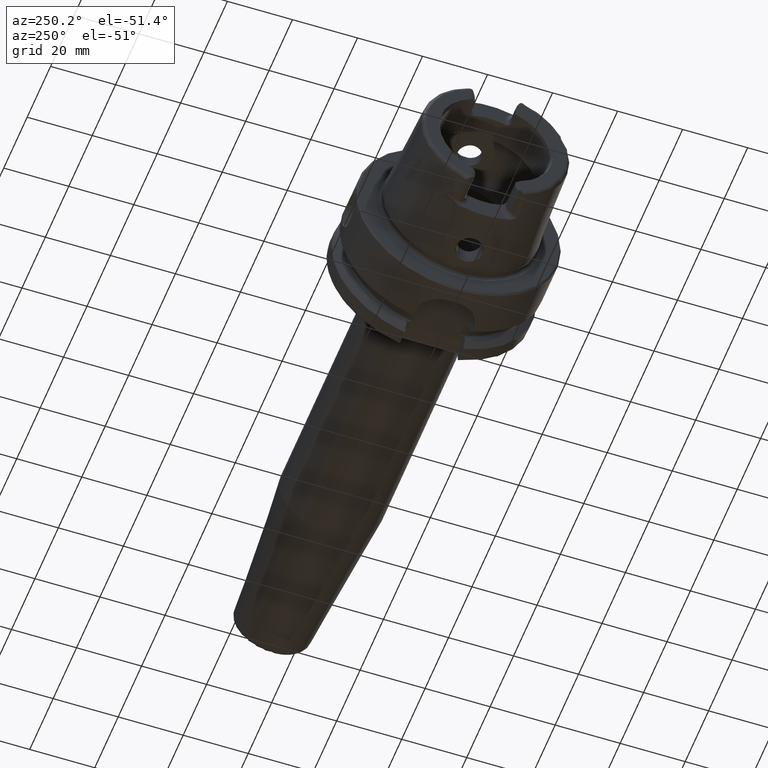
[diagram: clean part render]
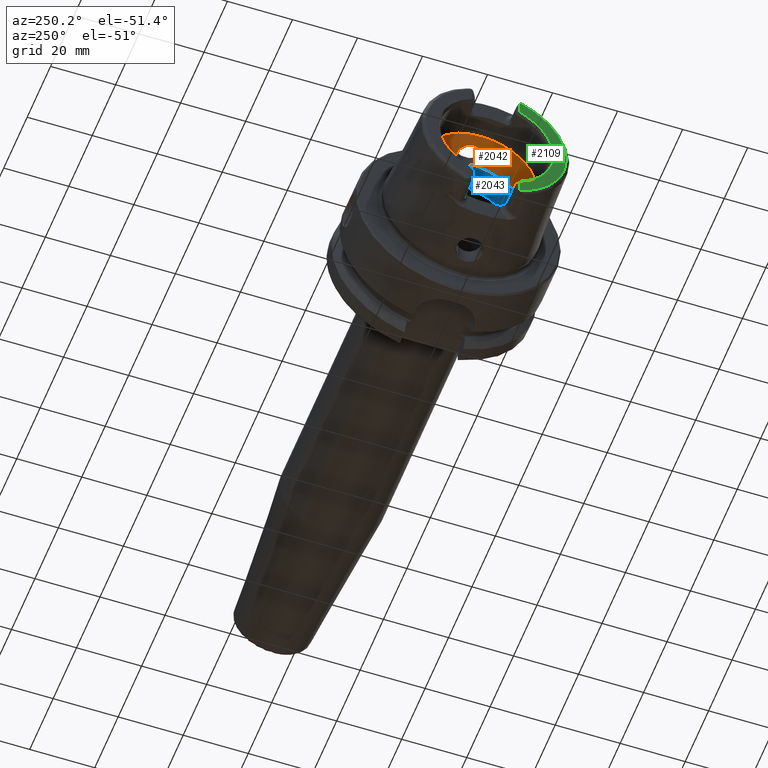
[diagram: same view with three faces highlighted in distinct colors, each labeled with its STEP entity id]
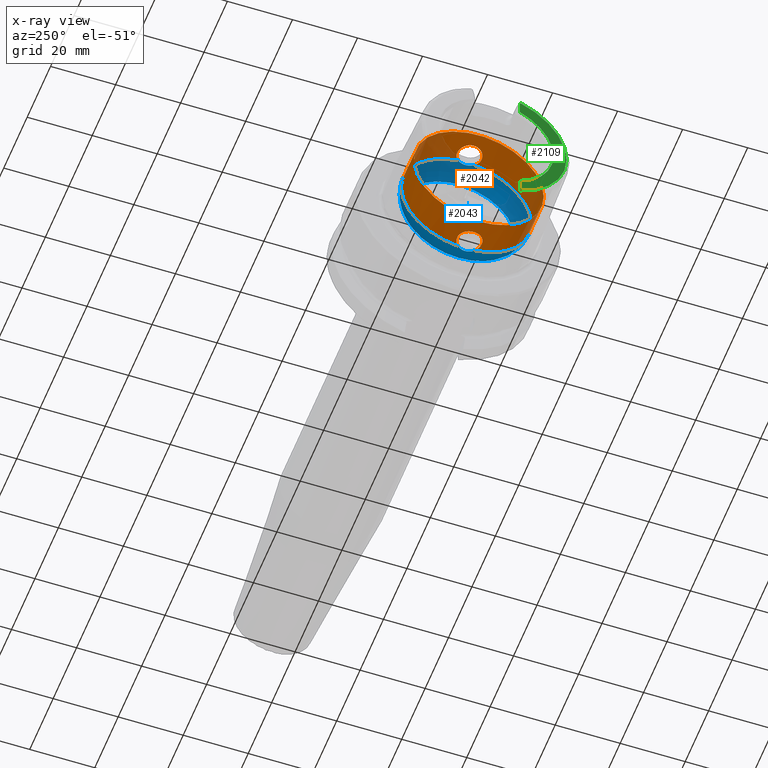
[diagram: x-ray of the same camera — body ghosted, the three highlighted faces saturated]
A machine part, auxiliary view with three faces highlighted in distinct colors.
The next image is the same camera in x-ray (body ghosted, the three faces saturated) — at least one of them is partly hidden behind the body in this view.
Their STEP definitions:

[orange] entity #2042 — the highlighted cylindrical surface (bore or boss wall) has radius 20 mm, axis along (-1, 0, 0).
#50=B_SPLINE_CURVE_WITH_KNOTS('',3,(#3613,#3614,#3615,#3616,#3617,#3618,
#3619,#3620,#3621,#3622,#3623,#3624,#3625,#3626,#3627,#3628,#3629,#3630,
#3631,#3632,#3633,#3634,#3635,#3636,#3637,#3638,#3639,#3640,#3641,#3642,
#3643),.UNSPECIFIED.,.F.,.F.,(4,2,2,2,2,2,2,2,2,2,2,3,2,2,4),(-1.43107314142755,
-1.4161913421645,-1.27456976724955,-1.1329481923346,-0.991326617419658,
-0.849705042504712,-0.708089569336007,-0.566474096167302,-0.424858622998598,
-0.283243149829893,-0.141621574914946,0.,0.141621574914946,0.283243149829893,
0.298124949100151),.UNSPECIFIED.);
#55=B_SPLINE_CURVE_WITH_KNOTS('',3,(#3782,#3783,#3784,#3785,#3786,#3787,
#3788,#3789,#3790,#3791,#3792,#3793,#3794,#3795,#3796,#3797,#3798,#3799,
#3800,#3801,#3802,#3803,#3804,#3805,#3806,#3807,#3808,#3809,#3810,#3811,
#3812),.UNSPECIFIED.,.F.,.F.,(4,2,2,3,2,2,2,2,2,2,2,2,2,2,4),(-0.298124949092949,
-0.283243149829893,-0.141621574914946,0.,0.141621574914946,0.283243149829893,
0.424858622998598,0.566474096167302,0.708089569336007,0.849705042504712,
0.991326617419658,1.1329481923346,1.27456976724955,1.4161913421645,1.43107314143475),
 .UNSPECIFIED.);
#191=CYLINDRICAL_SURFACE('',#2236,20.);
#249=FACE_OUTER_BOUND('',#378,.T.);
#378=EDGE_LOOP('',(#1536,#1537,#1538,#1539,#1540,#1541,#1542,#1543,#1544));
#515=LINE('',#3828,#625);
#625=VECTOR('',#2631,20.);
#731=CIRCLE('',#2237,20.);
#732=CIRCLE('',#2238,20.);
#733=CIRCLE('',#2239,20.);
#734=CIRCLE('',#2240,20.);
#735=CIRCLE('',#2241,20.);
#908=VERTEX_POINT('',#3599);
#909=VERTEX_POINT('',#3612);
#912=VERTEX_POINT('',#3767);
#914=VERTEX_POINT('',#3781);
#915=VERTEX_POINT('',#3825);
#916=VERTEX_POINT('',#3827);
#917=VERTEX_POINT('',#3829);
#1144=EDGE_CURVE('',#909,#908,#50,.T.);
#1150=EDGE_CURVE('',#914,#912,#55,.T.);
#1153=EDGE_CURVE('',#915,#912,#731,.T.);
#1154=EDGE_CURVE('',#915,#916,#515,.T.);
#1155=EDGE_CURVE('',#916,#917,#732,.T.);
#1156=EDGE_CURVE('',#917,#916,#733,.T.);
#1157=EDGE_CURVE('',#909,#915,#734,.T.);
#1158=EDGE_CURVE('',#914,#908,#735,.T.);
#1536=ORIENTED_EDGE('',*,*,#1150,.T.);
#1537=ORIENTED_EDGE('',*,*,#1153,.F.);
#1538=ORIENTED_EDGE('',*,*,#1154,.T.);
#1539=ORIENTED_EDGE('',*,*,#1155,.T.);
#1540=ORIENTED_EDGE('',*,*,#1156,.T.);
#1541=ORIENTED_EDGE('',*,*,#1154,.F.);
#1542=ORIENTED_EDGE('',*,*,#1157,.F.);
#1543=ORIENTED_EDGE('',*,*,#1144,.T.);
#1544=ORIENTED_EDGE('',*,*,#1158,.F.);
#2042=ADVANCED_FACE('',(#249),#191,.F.);
#2236=AXIS2_PLACEMENT_3D('',#3824,#2627,#2628);
#2237=AXIS2_PLACEMENT_3D('',#3826,#2629,#2630);
#2238=AXIS2_PLACEMENT_3D('',#3830,#2632,#2633);
#2239=AXIS2_PLACEMENT_3D('',#3831,#2634,#2635);
#2240=AXIS2_PLACEMENT_3D('',#3832,#2636,#2637);
#2241=AXIS2_PLACEMENT_3D('',#3833,#2638,#2639);
#2627=DIRECTION('center_axis',(-1.,0.,0.));
#2628=DIRECTION('ref_axis',(0.,1.,0.));
#2629=DIRECTION('center_axis',(-1.,0.,0.));
#2630=DIRECTION('ref_axis',(0.,0.,1.));
#2631=DIRECTION('',(-1.,0.,0.));
#2632=DIRECTION('center_axis',(-1.,0.,0.));
#2633=DIRECTION('ref_axis',(0.,0.,1.));
#2634=DIRECTION('center_axis',(-1.,0.,0.));
#2635=DIRECTION('ref_axis',(0.,0.,1.));
#2636=DIRECTION('center_axis',(-1.,0.,0.));
#2637=DIRECTION('ref_axis',(0.,0.,1.));
#2638=DIRECTION('center_axis',(-1.,0.,0.));
#2639=DIRECTION('ref_axis',(0.,0.,1.));
#3599=CARTESIAN_POINT('',(-6.2449979983984,2.54410376580264,-19.8375284758165));
#3612=CARTESIAN_POINT('',(-6.2449979983984,-2.54410376580264,-19.8375284758165));
#3613=CARTESIAN_POINT('Ctrl Pts',(-6.2449979983984,-2.54410376580264,-19.8375284758165));
#3614=CARTESIAN_POINT('Ctrl Pts',(-6.27894943420456,-2.58086966932454,-19.8328133585216));
#3615=CARTESIAN_POINT('Ctrl Pts',(-6.31342869219743,-2.61672955109653,-19.8281105439642));
#3616=CARTESIAN_POINT('Ctrl Pts',(-6.68067160381732,-2.98397246271642,-19.7789868876592));
#3617=CARTESIAN_POINT('Ctrl Pts',(-7.10159661632629,-3.27238367725626,-19.731429741537));
#3618=CARTESIAN_POINT('Ctrl Pts',(-8.0251754070192,-3.65542701546408,-19.6640704965084));
#3619=CARTESIAN_POINT('Ctrl Pts',(-8.52792808361685,-3.75,-19.6452920568771));
#3620=CARTESIAN_POINT('Ctrl Pts',(-9.47207191638316,-3.75,-19.6452920568771));
#3621=CARTESIAN_POINT('Ctrl Pts',(-9.97482459298081,-3.65542701546408,-19.6640704965084));
#3622=CARTESIAN_POINT('Ctrl Pts',(-10.8984033836737,-3.27238367725626,-19.731429741537));
#3623=CARTESIAN_POINT('Ctrl Pts',(-11.3193283961827,-2.98397246271642,-19.7789868876592));
#3624=CARTESIAN_POINT('Ctrl Pts',(-11.9839581446669,-2.31934271423217,-19.8678900149943));
#3625=CARTESIAN_POINT('Ctrl Pts',(-12.2723805817074,-1.89841159537053,-19.9150796801946));
#3626=CARTESIAN_POINT('Ctrl Pts',(-12.6554320620407,-0.974811677040414,
-19.9815942165963));
#3627=CARTESIAN_POINT('Ctrl Pts',(-12.75,-0.472051577229017,-20.));
#3628=CARTESIAN_POINT('Ctrl Pts',(-12.75,0.472051577229015,-20.));
#3629=CARTESIAN_POINT('Ctrl Pts',(-12.6554320620407,0.974811677040408,-19.9815942165963));
#3630=CARTESIAN_POINT('Ctrl Pts',(-12.2723805817074,1.89841159537052,-19.9150796801946));
#3631=CARTESIAN_POINT('Ctrl Pts',(-11.9839581446669,2.31934271423217,-19.8678900149943));
#3632=CARTESIAN_POINT('Ctrl Pts',(-11.3193283961827,2.98397246271642,-19.7789868876592));
#3633=CARTESIAN_POINT('Ctrl Pts',(-10.8984033836737,3.27238367725626,-19.731429741537));
#3634=CARTESIAN_POINT('Ctrl Pts',(-9.97482459298081,3.65542701546408,-19.6640704965084));
#3635=CARTESIAN_POINT('Ctrl Pts',(-9.47207191638316,3.75,-19.6452920568771));
#3636=CARTESIAN_POINT('Ctrl Pts',(-9.,3.75,-19.6452920568771));
#3637=CARTESIAN_POINT('Ctrl Pts',(-8.52792808361685,3.75,-19.6452920568771));
#3638=CARTESIAN_POINT('Ctrl Pts',(-8.0251754070192,3.65542701546408,-19.6640704965084));
#3639=CARTESIAN_POINT('Ctrl Pts',(-7.10159661632629,3.27238367725626,-19.731429741537));
#3640=CARTESIAN_POINT('Ctrl Pts',(-6.68067160381732,2.98397246271642,-19.7789868876592));
#3641=CARTESIAN_POINT('Ctrl Pts',(-6.31342869218053,2.61672955107963,-19.8281105439665));
#3642=CARTESIAN_POINT('Ctrl Pts',(-6.27894943419011,2.5808696693089,-19.8328133585236));
#3643=CARTESIAN_POINT('Ctrl Pts',(-6.2449979983984,2.54410376580264,-19.8375284758165));
#3767=CARTESIAN_POINT('',(-6.2449979983984,-2.54410376580264,19.8375284758165));
#3781=CARTESIAN_POINT('',(-6.2449979983984,2.54410376580264,19.8375284758165));
#3782=CARTESIAN_POINT('Ctrl Pts',(-6.2449979983984,2.54410376580264,19.8375284758165));
#3783=CARTESIAN_POINT('Ctrl Pts',(-6.27894943420456,2.58086966932454,19.8328133585216));
#3784=CARTESIAN_POINT('Ctrl Pts',(-6.31342869219742,2.61672955109653,19.8281105439642));
#3785=CARTESIAN_POINT('Ctrl Pts',(-6.68067160381731,2.98397246271642,19.7789868876592));
#3786=CARTESIAN_POINT('Ctrl Pts',(-7.10159661632629,3.27238367725626,19.731429741537));
#3787=CARTESIAN_POINT('Ctrl Pts',(-8.02517540701919,3.65542701546408,19.6640704965084));
#3788=CARTESIAN_POINT('Ctrl Pts',(-8.52792808361684,3.75,19.6452920568771));
#3789=CARTESIAN_POINT('Ctrl Pts',(-9.,3.75,19.6452920568771));
#3790=CARTESIAN_POINT('Ctrl Pts',(-9.47207191638315,3.75,19.6452920568771));
#3791=CARTESIAN_POINT('Ctrl Pts',(-9.97482459298081,3.65542701546408,19.6640704965084));
#3792=CARTESIAN_POINT('Ctrl Pts',(-10.8984033836737,3.27238367725626,19.731429741537));
#3793=CARTESIAN_POINT('Ctrl Pts',(-11.3193283961827,2.98397246271642,19.7789868876592));
#3794=CARTESIAN_POINT('Ctrl Pts',(-11.9839581446669,2.31934271423217,19.8678900149943));
#3795=CARTESIAN_POINT('Ctrl Pts',(-12.2723805817074,1.89841159537052,19.9150796801946));
#3796=CARTESIAN_POINT('Ctrl Pts',(-12.6554320620407,0.97481167704041,19.9815942165963));
#3797=CARTESIAN_POINT('Ctrl Pts',(-12.75,0.472051577229015,20.));
#3798=CARTESIAN_POINT('Ctrl Pts',(-12.75,-0.472051577229017,20.));
#3799=CARTESIAN_POINT('Ctrl Pts',(-12.6554320620407,-0.974811677040414,
19.9815942165963));
#3800=CARTESIAN_POINT('Ctrl Pts',(-12.2723805817074,-1.89841159537053,19.9150796801946));
#3801=CARTESIAN_POINT('Ctrl Pts',(-11.9839581446669,-2.31934271423217,19.8678900149943));
#3802=CARTESIAN_POINT('Ctrl Pts',(-11.3193283961827,-2.98397246271642,19.7789868876592));
#3803=CARTESIAN_POINT('Ctrl Pts',(-10.8984033836737,-3.27238367725626,19.731429741537));
#3804=CARTESIAN_POINT('Ctrl Pts',(-9.9748245929808,-3.65542701546408,19.6640704965084));
#3805=CARTESIAN_POINT('Ctrl Pts',(-9.47207191638315,-3.75,19.6452920568771));
#3806=CARTESIAN_POINT('Ctrl Pts',(-8.52792808361684,-3.75,19.6452920568771));
#3807=CARTESIAN_POINT('Ctrl Pts',(-8.02517540701919,-3.65542701546408,19.6640704965084));
#3808=CARTESIAN_POINT('Ctrl Pts',(-7.10159661632629,-3.27238367725626,19.731429741537));
#3809=CARTESIAN_POINT('Ctrl Pts',(-6.68067160381731,-2.98397246271642,19.7789868876592));
#3810=CARTESIAN_POINT('Ctrl Pts',(-6.31342869218052,-2.61672955107963,19.8281105439665));
#3811=CARTESIAN_POINT('Ctrl Pts',(-6.27894943419011,-2.5808696693089,19.8328133585236));
#3812=CARTESIAN_POINT('Ctrl Pts',(-6.2449979983984,-2.54410376580264,19.8375284758165));
#3824=CARTESIAN_POINT('Origin',(-11.5812812165501,0.,0.));
#3825=CARTESIAN_POINT('',(-6.2449979983984,-20.,2.44929359829471E-15));
#3826=CARTESIAN_POINT('Origin',(-6.2449979983984,0.,0.));
#3827=CARTESIAN_POINT('',(-16.9175644347018,-20.,2.44929359829471E-15));
#3828=CARTESIAN_POINT('',(-11.5812812165501,-20.,2.44929359829471E-15));
#3829=CARTESIAN_POINT('',(-16.9175644347018,-2.44929359829471E-15,-20.));
#3830=CARTESIAN_POINT('Origin',(-16.9175644347018,0.,0.));
#3831=CARTESIAN_POINT('Origin',(-16.9175644347018,0.,0.));
#3832=CARTESIAN_POINT('Origin',(-6.2449979983984,0.,0.));
#3833=CARTESIAN_POINT('Origin',(-6.2449979983984,0.,0.));

[blue] entity #2043 — the highlighted toroidal blend (fillet) surface has major radius 12 mm and minor (blend) radius 8 mm.
#49=B_SPLINE_CURVE_WITH_KNOTS('',3,(#3600,#3601,#3602,#3603,#3604,#3605,
#3606,#3607,#3608,#3609,#3610,#3611),.UNSPECIFIED.,.F.,.F.,(4,2,2,2,2,4),
(-0.560647090003115,-0.432465132423936,-0.371738630353782,-0.32053783623797,
-0.287500355516274,-0.280385270121909),.UNSPECIFIED.);
#51=B_SPLINE_CURVE_WITH_KNOTS('',3,(#3644,#3645,#3646,#3647,#3648,#3649,
#3650,#3651,#3652,#3653),.UNSPECIFIED.,.F.,.F.,(4,2,2,2,4),(-0.280385270121909,
-0.256917987419631,-0.21744735037608,-0.138661357565599,0.),
 .UNSPECIFIED.);
#54=B_SPLINE_CURVE_WITH_KNOTS('',3,(#3769,#3770,#3771,#3772,#3773,#3774,
#3775,#3776,#3777,#3778,#3779,#3780),.UNSPECIFIED.,.F.,.F.,(4,2,2,2,2,4),
(-0.560647090003256,-0.432465132424011,-0.371738630353825,-0.32053783623799,
-0.287500355516289,-0.280385270121924),.UNSPECIFIED.);
#56=B_SPLINE_CURVE_WITH_KNOTS('',3,(#3813,#3814,#3815,#3816,#3817,#3818,
#3819,#3820,#3821,#3822),.UNSPECIFIED.,.F.,.F.,(4,2,2,2,4),(-0.280385270121924,
-0.256917987419636,-0.217447350376074,-0.138661357565593,0.),
 .UNSPECIFIED.);
#147=TOROIDAL_SURFACE('',#2242,12.,8.);
#250=FACE_OUTER_BOUND('',#379,.T.);
#379=EDGE_LOOP('',(#1545,#1546,#1547,#1548,#1549,#1550,#1551,#1552,#1553,
#1554,#1555));
#731=CIRCLE('',#2237,20.);
#734=CIRCLE('',#2240,20.);
#735=CIRCLE('',#2241,20.);
#736=CIRCLE('',#2243,17.);
#737=CIRCLE('',#2244,17.);
#738=CIRCLE('',#2245,8.);
#907=VERTEX_POINT('',#3597);
#908=VERTEX_POINT('',#3599);
#909=VERTEX_POINT('',#3612);
#912=VERTEX_POINT('',#3767);
#913=VERTEX_POINT('',#3768);
#914=VERTEX_POINT('',#3781);
#915=VERTEX_POINT('',#3825);
#918=VERTEX_POINT('',#3835);
#919=VERTEX_POINT('',#3836);
#1143=EDGE_CURVE('',#908,#907,#49,.T.);
#1145=EDGE_CURVE('',#907,#909,#51,.T.);
#1149=EDGE_CURVE('',#912,#913,#54,.T.);
#1151=EDGE_CURVE('',#913,#914,#56,.T.);
#1153=EDGE_CURVE('',#915,#912,#731,.T.);
#1157=EDGE_CURVE('',#909,#915,#734,.T.);
#1158=EDGE_CURVE('',#914,#908,#735,.T.);
#1159=EDGE_CURVE('',#918,#919,#736,.T.);
#1160=EDGE_CURVE('',#919,#918,#737,.T.);
#1161=EDGE_CURVE('',#919,#907,#738,.T.);
#1545=ORIENTED_EDGE('',*,*,#1159,.F.);
#1546=ORIENTED_EDGE('',*,*,#1160,.F.);
#1547=ORIENTED_EDGE('',*,*,#1161,.T.);
#1548=ORIENTED_EDGE('',*,*,#1145,.T.);
#1549=ORIENTED_EDGE('',*,*,#1157,.T.);
#1550=ORIENTED_EDGE('',*,*,#1153,.T.);
#1551=ORIENTED_EDGE('',*,*,#1149,.T.);
#1552=ORIENTED_EDGE('',*,*,#1151,.T.);
#1553=ORIENTED_EDGE('',*,*,#1158,.T.);
#1554=ORIENTED_EDGE('',*,*,#1143,.T.);
#1555=ORIENTED_EDGE('',*,*,#1161,.F.);
#2043=ADVANCED_FACE('',(#250),#147,.F.);
#2237=AXIS2_PLACEMENT_3D('',#3826,#2629,#2630);
#2240=AXIS2_PLACEMENT_3D('',#3832,#2636,#2637);
#2241=AXIS2_PLACEMENT_3D('',#3833,#2638,#2639);
#2242=AXIS2_PLACEMENT_3D('',#3834,#2640,#2641);
#2243=AXIS2_PLACEMENT_3D('',#3837,#2642,#2643);
#2244=AXIS2_PLACEMENT_3D('',#3838,#2644,#2645);
#2245=AXIS2_PLACEMENT_3D('',#3839,#2646,#2647);
#2629=DIRECTION('center_axis',(-1.,0.,0.));
#2630=DIRECTION('ref_axis',(0.,0.,1.));
#2636=DIRECTION('center_axis',(-1.,0.,0.));
#2637=DIRECTION('ref_axis',(0.,0.,1.));
#2638=DIRECTION('center_axis',(-1.,0.,0.));
#2639=DIRECTION('ref_axis',(0.,0.,1.));
#2640=DIRECTION('center_axis',(-1.,0.,0.));
#2641=DIRECTION('ref_axis',(0.,0.,1.));
#2642=DIRECTION('center_axis',(-1.,0.,0.));
#2643=DIRECTION('ref_axis',(0.,0.,1.));
#2644=DIRECTION('center_axis',(-1.,0.,0.));
#2645=DIRECTION('ref_axis',(0.,0.,1.));
#2646=DIRECTION('center_axis',(0.,1.,-1.22464679914735E-16));
#2647=DIRECTION('ref_axis',(0.,-1.22464679914735E-16,-1.));
#3597=CARTESIAN_POINT('',(-5.25,3.07683831259085E-16,-19.9378825251564));
#3599=CARTESIAN_POINT('',(-6.2449979983984,2.54410376580264,-19.8375284758165));
#3600=CARTESIAN_POINT('Ctrl Pts',(-6.2449979983984,2.54410376580263,-19.8375284758165));
#3601=CARTESIAN_POINT('Ctrl Pts',(-5.9563832733696,2.23156378381208,-19.877610794847));
#3602=CARTESIAN_POINT('Ctrl Pts',(-5.72238184052007,1.87139505615745,-19.9007586679726));
#3603=CARTESIAN_POINT('Ctrl Pts',(-5.47415257397377,1.29299577523533,-19.9221291461079));
#3604=CARTESIAN_POINT('Ctrl Pts',(-5.40951125063364,1.10084807786171,-19.9269865934584));
#3605=CARTESIAN_POINT('Ctrl Pts',(-5.31953029252225,0.738763665580492,-19.9333991732415));
#3606=CARTESIAN_POINT('Ctrl Pts',(-5.28971989928313,0.57048989328573,-19.9353426103026));
#3607=CARTESIAN_POINT('Ctrl Pts',(-5.25970604483208,0.291260075331645,-19.9372753146995));
#3608=CARTESIAN_POINT('Ctrl Pts',(-5.25276504295341,0.181279004510485,-19.9377089305339));
#3609=CARTESIAN_POINT('Ctrl Pts',(-5.25022501552319,0.0474369436209427,
-19.9378684144199));
#3610=CARTESIAN_POINT('Ctrl Pts',(-5.25,0.0237178817918345,-19.9378825251564));
#3611=CARTESIAN_POINT('Ctrl Pts',(-5.25,1.73633857888389E-16,-19.9378825251564));
#3612=CARTESIAN_POINT('',(-6.2449979983984,-2.54410376580264,-19.8375284758165));
#3644=CARTESIAN_POINT('Ctrl Pts',(-5.25,1.73633857888389E-16,-19.9378825251564));
#3645=CARTESIAN_POINT('Ctrl Pts',(-5.25,-0.0782273446147222,-19.9378825251564));
#3646=CARTESIAN_POINT('Ctrl Pts',(-5.25244785081342,-0.15644185230388,-19.9377296492436));
#3647=CARTESIAN_POINT('Ctrl Pts',(-5.26557067654327,-0.365860616871457,
-19.9368989370107));
#3648=CARTESIAN_POINT('Ctrl Pts',(-5.2807081654794,-0.496671474530444,-19.9359382432917));
#3649=CARTESIAN_POINT('Ctrl Pts',(-5.34656166936447,-0.885366242555149,
-19.9315392091305));
#3650=CARTESIAN_POINT('Ctrl Pts',(-5.41752174824152,-1.13897710923821,-19.9266508951874));
#3651=CARTESIAN_POINT('Ctrl Pts',(-5.68473945553282,-1.81246400136134,-19.9044561094296));
#3652=CARTESIAN_POINT('Ctrl Pts',(-5.93280828188796,-2.20603449935731,-19.880884849314));
#3653=CARTESIAN_POINT('Ctrl Pts',(-6.2449979983984,-2.54410376580263,-19.8375284758165));
#3767=CARTESIAN_POINT('',(-6.2449979983984,-2.54410376580264,19.8375284758165));
#3768=CARTESIAN_POINT('',(-5.25,4.81156178856766E-16,19.9378825251564));
#3769=CARTESIAN_POINT('Ctrl Pts',(-6.2449979983984,-2.54410376580264,19.8375284758165));
#3770=CARTESIAN_POINT('Ctrl Pts',(-5.9563832733696,-2.23156378381209,19.877610794847));
#3771=CARTESIAN_POINT('Ctrl Pts',(-5.72238184052007,-1.87139505615746,19.9007586679726));
#3772=CARTESIAN_POINT('Ctrl Pts',(-5.47415257397376,-1.29299577523533,19.9221291461079));
#3773=CARTESIAN_POINT('Ctrl Pts',(-5.40951125063363,-1.10084807786172,19.9269865934584));
#3774=CARTESIAN_POINT('Ctrl Pts',(-5.31953029252225,-0.738763665580501,
19.9333991732415));
#3775=CARTESIAN_POINT('Ctrl Pts',(-5.28971989928313,-0.570489893285745,
19.9353426103026));
#3776=CARTESIAN_POINT('Ctrl Pts',(-5.25970604483207,-0.291260075331669,
19.9372753146995));
#3777=CARTESIAN_POINT('Ctrl Pts',(-5.2527650429534,-0.181279004510531,19.9377089305339));
#3778=CARTESIAN_POINT('Ctrl Pts',(-5.25022501552319,-0.0474369436209401,
19.9378684144199));
#3779=CARTESIAN_POINT('Ctrl Pts',(-5.25,-0.0237178817918311,19.9378825251564));
#3780=CARTESIAN_POINT('Ctrl Pts',(-5.25,5.15920899939407E-16,19.9378825251564));
#3781=CARTESIAN_POINT('',(-6.2449979983984,2.54410376580264,19.8375284758165));
#3813=CARTESIAN_POINT('Ctrl Pts',(-5.25,5.15920899939407E-16,19.9378825251564));
#3814=CARTESIAN_POINT('Ctrl Pts',(-5.25,0.0782273446147462,19.9378825251564));
#3815=CARTESIAN_POINT('Ctrl Pts',(-5.25244785081342,0.156441852303891,19.9377296492436));
#3816=CARTESIAN_POINT('Ctrl Pts',(-5.26557067654326,0.36586061687142,19.9368989370107));
#3817=CARTESIAN_POINT('Ctrl Pts',(-5.28070816547939,0.496671474530425,19.9359382432917));
#3818=CARTESIAN_POINT('Ctrl Pts',(-5.34656166936446,0.885366242555101,19.9315392091305));
#3819=CARTESIAN_POINT('Ctrl Pts',(-5.41752174824151,1.13897710923819,19.9266508951874));
#3820=CARTESIAN_POINT('Ctrl Pts',(-5.68473945553283,1.81246400136138,19.9044561094296));
#3821=CARTESIAN_POINT('Ctrl Pts',(-5.93280828188797,2.20603449935733,19.880884849314));
#3822=CARTESIAN_POINT('Ctrl Pts',(-6.2449979983984,2.54410376580264,19.8375284758165));
#3825=CARTESIAN_POINT('',(-6.2449979983984,-20.,2.44929359829471E-15));
#3826=CARTESIAN_POINT('Origin',(-6.2449979983984,0.,0.));
#3832=CARTESIAN_POINT('Origin',(-6.2449979983984,0.,0.));
#3833=CARTESIAN_POINT('Origin',(-6.2449979983984,0.,0.));
#3834=CARTESIAN_POINT('Origin',(-6.2449979983984,0.,0.));
#3835=CARTESIAN_POINT('',(0.,-17.,2.0818995585505E-15));
#3836=CARTESIAN_POINT('',(0.,-2.0818995585505E-15,-17.));
#3837=CARTESIAN_POINT('Origin',(0.,0.,0.));
#3838=CARTESIAN_POINT('Origin',(0.,0.,0.));
#3839=CARTESIAN_POINT('Origin',(-6.2449979983984,-1.46957615897682E-15,
-12.));

[green] entity #2109 — the highlighted planar face has unit normal (-1, 0, 0).
#139=PLANE('',#2366);
#316=FACE_OUTER_BOUND('',#446,.T.);
#446=EDGE_LOOP('',(#1905,#1906,#1907,#1908,#1909,#1910));
#488=LINE('',#3143,#598);
#501=LINE('',#3256,#611);
#598=VECTOR('',#2526,10.);
#611=VECTOR('',#2573,10.);
#717=CIRCLE('',#2203,2.88);
#721=CIRCLE('',#2218,2.88);
#794=CIRCLE('',#2367,21.5760400159857);
#795=CIRCLE('',#2368,17.5773502691896);
#854=VERTEX_POINT('',#3140);
#855=VERTEX_POINT('',#3142);
#862=VERTEX_POINT('',#3175);
#875=VERTEX_POINT('',#3249);
#878=VERTEX_POINT('',#3254);
#881=VERTEX_POINT('',#3264);
#1075=EDGE_CURVE('',#854,#855,#488,.T.);
#1084=EDGE_CURVE('',#854,#862,#717,.T.);
#1103=EDGE_CURVE('',#878,#875,#501,.T.);
#1107=EDGE_CURVE('',#881,#875,#721,.T.);
#1316=EDGE_CURVE('',#881,#862,#794,.T.);
#1317=EDGE_CURVE('',#855,#878,#795,.T.);
#1905=ORIENTED_EDGE('',*,*,#1075,.F.);
#1906=ORIENTED_EDGE('',*,*,#1084,.T.);
#1907=ORIENTED_EDGE('',*,*,#1316,.F.);
#1908=ORIENTED_EDGE('',*,*,#1107,.T.);
#1909=ORIENTED_EDGE('',*,*,#1103,.F.);
#1910=ORIENTED_EDGE('',*,*,#1317,.F.);
#2109=ADVANCED_FACE('',(#316),#139,.T.);
#2203=AXIS2_PLACEMENT_3D('',#3188,#2538,#2539);
#2218=AXIS2_PLACEMENT_3D('',#3265,#2581,#2582);
#2366=AXIS2_PLACEMENT_3D('',#4446,#2943,#2944);
#2367=AXIS2_PLACEMENT_3D('',#4447,#2945,#2946);
#2368=AXIS2_PLACEMENT_3D('',#4448,#2947,#2948);
#2526=DIRECTION('',(0.,0.,1.));
#2538=DIRECTION('center_axis',(-1.,0.,0.));
#2539=DIRECTION('ref_axis',(0.,-1.,0.));
#2573=DIRECTION('',(0.,1.58830189502884E-16,1.));
#2581=DIRECTION('center_axis',(-1.,0.,0.));
#2582=DIRECTION('ref_axis',(0.,0.453346760926795,-0.891334232685576));
#2943=DIRECTION('center_axis',(-1.,0.,0.));
#2944=DIRECTION('ref_axis',(0.,0.,1.));
#2945=DIRECTION('center_axis',(1.,0.,0.));
#2946=DIRECTION('ref_axis',(0.,0.,-1.));
#2947=DIRECTION('center_axis',(-1.,0.,0.));
#2948=DIRECTION('ref_axis',(0.,-1.,0.));
#3140=CARTESIAN_POINT('',(-32.,-7.27,-20.1717424229271));
#3142=CARTESIAN_POINT('',(-32.,-7.27,-16.003447831195));
#3143=CARTESIAN_POINT('',(-32.,-7.27,-8.995));
#3175=CARTESIAN_POINT('',(-32.,-7.39118810947246,-20.2705658801576));
#3188=CARTESIAN_POINT('Origin',(-32.,-9.15,-17.99));
#3249=CARTESIAN_POINT('',(-32.,-7.26999999999999,20.1717424229271));
#3254=CARTESIAN_POINT('',(-32.,-7.26999999999999,16.003447831195));
#3256=CARTESIAN_POINT('',(-32.,-7.27,5.5));
#3264=CARTESIAN_POINT('',(-32.,-7.39118810947246,20.2705658801576));
#3265=CARTESIAN_POINT('Origin',(-32.,-9.15,17.99));
#4446=CARTESIAN_POINT('Origin',(-32.,21.5760400159857,0.));
#4447=CARTESIAN_POINT('Origin',(-32.,0.,0.));
#4448=CARTESIAN_POINT('Origin',(-32.,0.,0.));